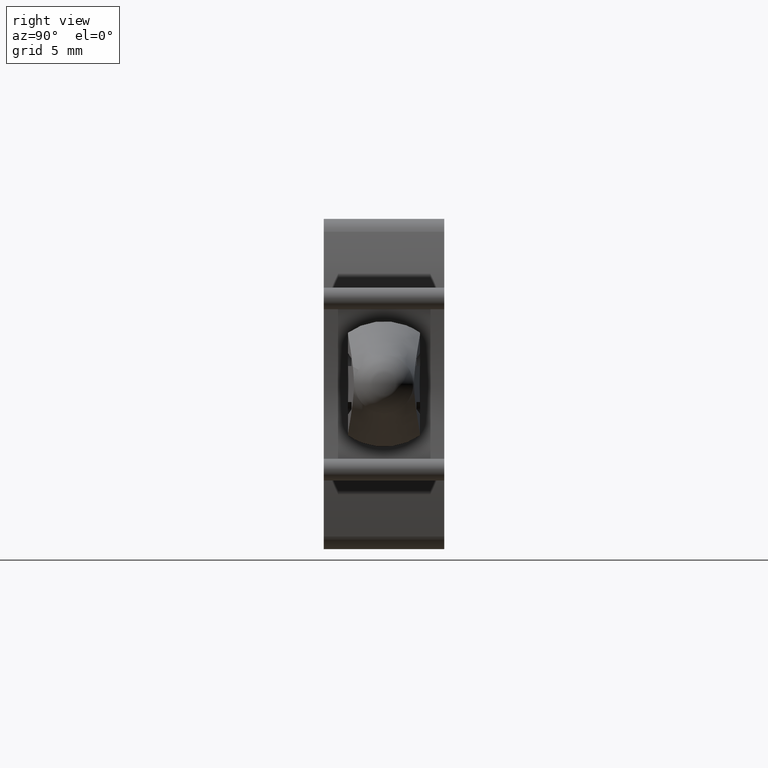
[diagram: clean part render]
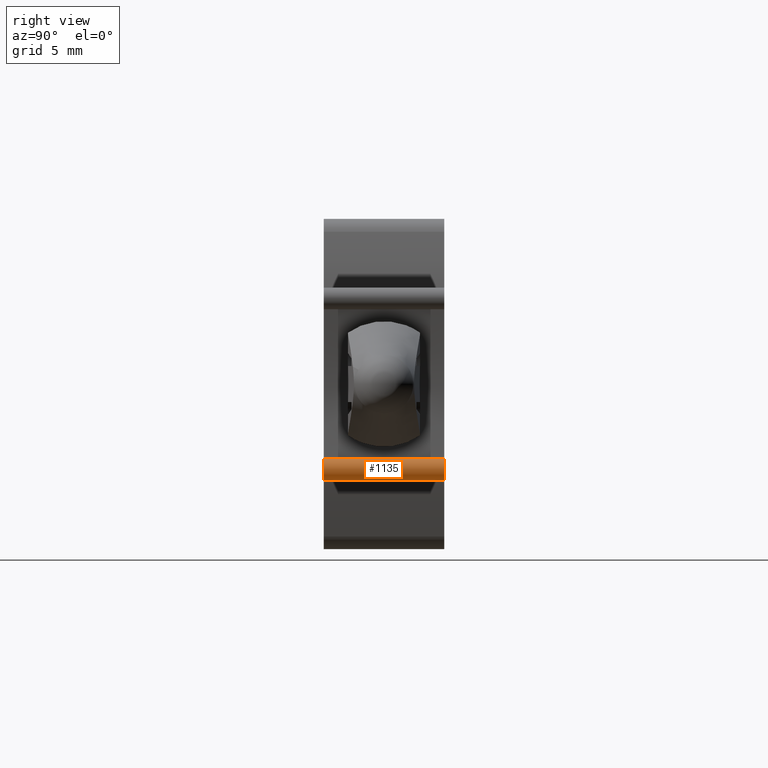
[diagram: same view with one face highlighted and labeled with its STEP entity id]
A machine part, right view. The second image highlights one B-rep face of the part: STEP entity #1135.
In plain terms, the highlighted face is a freeform B-spline surface patch.
Its self-contained STEP definition (entity closure, byte-faithful):
#1044=CARTESIAN_POINT('',(6.949999999999999,-2.499999999999945,-4.0));
#1045=VERTEX_POINT('',#1044);
#1060=CARTESIAN_POINT('',(6.949999999999999,2.500000000000060,-4.0));
#1061=VERTEX_POINT('',#1060);
#1067=CARTESIAN_POINT('',(6.949999999999999,2.500000000000060,-4.0));
#1068=CARTESIAN_POINT('',(6.949999999999999,-2.499999999999945,-4.0));
#1069=QUASI_UNIFORM_CURVE('',1,(#1067,#1068),.UNSPECIFIED.,.F.,.U.);
#1070=EDGE_CURVE('',#1061,#1045,#1069,.T.);
#1075=CARTESIAN_POINT('',(6.938220373261456,2.625000000000061,-3.100154203761000));
#1076=CARTESIAN_POINT('',(6.938220373261456,-2.628124999999945,-3.100154203761000));
#1077=CARTESIAN_POINT('',(7.412258932779305,2.625000000000061,-3.087741067220694));
#1078=CARTESIAN_POINT('',(7.412258932779305,-2.628124999999944,-3.087741067220694));
#1079=CARTESIAN_POINT('',(7.399845796239000,2.625000000000061,-3.561779626738543));
#1080=CARTESIAN_POINT('',(7.399845796239000,-2.628124999999945,-3.561779626738543));
#1081=CARTESIAN_POINT('',(7.387432659698696,2.625000000000061,-4.035818186256392));
#1082=CARTESIAN_POINT('',(7.387432659698696,-2.628124999999944,-4.035818186256392));
#1083=CARTESIAN_POINT('',(6.914693406922469,2.625000000000061,-3.998612800179909));
#1084=CARTESIAN_POINT('',(6.914693406922469,-2.628124999999945,-3.998612800179909));
#1092=(BOUNDED_SURFACE()B_SPLINE_SURFACE(1,2,((#1075,#1077,#1079,#1081,#1083),(#1076,#1078,#1080,#1082,#1084)),.UNSPECIFIED.,.F.,.F.,.U.)B_SPLINE_SURFACE_WITH_KNOTS((2,2),(3,2,3),(0.0,5.253125000000007),(0.0,1.0,2.0),.UNSPECIFIED.)GEOMETRIC_REPRESENTATION_ITEM()RATIONAL_B_SPLINE_SURFACE(((1.0,0.688354575693754,1.0,0.688354575693754,1.0),(1.0,0.688354575693754,1.0,0.688354575693754,1.0)))REPRESENTATION_ITEM('')SURFACE());
#1093=CARTESIAN_POINT('',(6.949999999999999,-2.499999999999945,-3.100000000000000));
#1094=VERTEX_POINT('',#1093);
#1095=CARTESIAN_POINT('',(6.949999999999999,-2.499999999999945,-4.0));
#1096=CARTESIAN_POINT('',(7.400000000000000,-2.499999999999945,-4.0));
#1097=CARTESIAN_POINT('',(7.400000000000000,-2.499999999999945,-3.550000000000000));
#1098=CARTESIAN_POINT('',(7.400000000000000,-2.499999999999945,-3.100000000000000));
#1099=CARTESIAN_POINT('',(6.949999999999999,-2.499999999999945,-3.100000000000001));
#1107=(BOUNDED_CURVE()B_SPLINE_CURVE(2,(#1095,#1096,#1097,#1098,#1099),.UNSPECIFIED.,.F.,.U.)B_SPLINE_CURVE_WITH_KNOTS((3,2,3),(0.0,0.500000000000000,1.0),.UNSPECIFIED.)CURVE()GEOMETRIC_REPRESENTATION_ITEM()RATIONAL_B_SPLINE_CURVE((1.0,0.707106781186547,1.0,0.707106781186547,1.0))REPRESENTATION_ITEM(''));
#1108=EDGE_CURVE('',#1045,#1094,#1107,.T.);
#1109=ORIENTED_EDGE('',*,*,#1108,.F.);
#1110=ORIENTED_EDGE('',*,*,#1070,.F.);
#1111=CARTESIAN_POINT('',(6.949999999999999,2.500000000000060,-3.100000000000000));
#1112=VERTEX_POINT('',#1111);
#1113=CARTESIAN_POINT('',(6.949999999999999,2.500000000000060,-4.0));
#1114=CARTESIAN_POINT('',(7.400000000000000,2.500000000000060,-4.0));
#1115=CARTESIAN_POINT('',(7.400000000000000,2.500000000000060,-3.550000000000000));
#1116=CARTESIAN_POINT('',(7.400000000000000,2.500000000000060,-3.100000000000000));
#1117=CARTESIAN_POINT('',(6.949999999999999,2.500000000000060,-3.100000000000001));
#1125=(BOUNDED_CURVE()B_SPLINE_CURVE(2,(#1113,#1114,#1115,#1116,#1117),.UNSPECIFIED.,.F.,.U.)B_SPLINE_CURVE_WITH_KNOTS((3,2,3),(0.0,0.500000000000000,1.0),.UNSPECIFIED.)CURVE()GEOMETRIC_REPRESENTATION_ITEM()RATIONAL_B_SPLINE_CURVE((1.0,0.707106781186547,1.0,0.707106781186547,1.0))REPRESENTATION_ITEM(''));
#1126=EDGE_CURVE('',#1061,#1112,#1125,.T.);
#1127=ORIENTED_EDGE('',*,*,#1126,.T.);
#1128=CARTESIAN_POINT('',(6.949999999999999,2.500000000000060,-3.100000000000000));
#1129=CARTESIAN_POINT('',(6.949999999999999,-2.499999999999945,-3.100000000000000));
#1130=QUASI_UNIFORM_CURVE('',1,(#1128,#1129),.UNSPECIFIED.,.F.,.U.);
#1131=EDGE_CURVE('',#1112,#1094,#1130,.T.);
#1132=ORIENTED_EDGE('',*,*,#1131,.T.);
#1133=EDGE_LOOP('',(#1109,#1110,#1127,#1132));
#1134=FACE_OUTER_BOUND('',#1133,.T.);
#1135=ADVANCED_FACE('',(#1134),#1092,.T.);